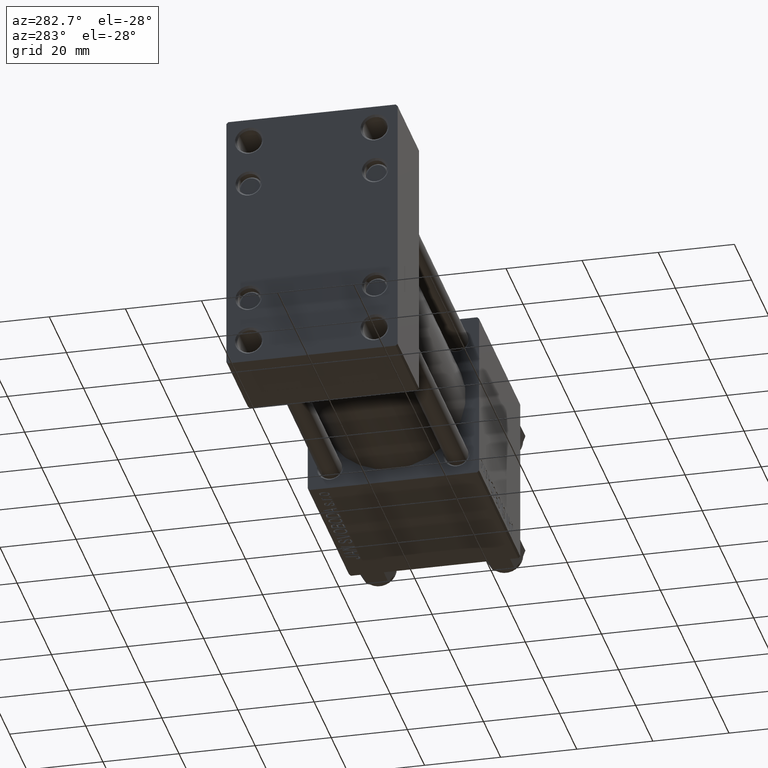
[diagram: clean part render]
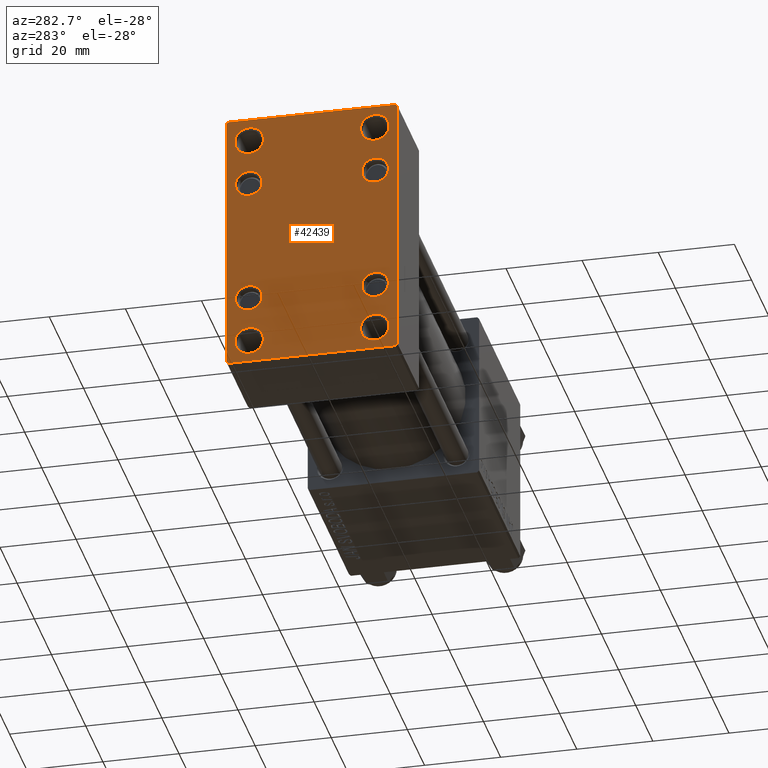
[diagram: same view with one face highlighted and labeled with its STEP entity id]
A machine part, auxiliary view. The second image highlights one B-rep face of the part: STEP entity #42439.
In plain terms, the highlighted planar face has unit normal (-1, 0, 0).
Its self-contained STEP definition (entity closure, byte-faithful):
#41 = FACE_BOUND ( 'NONE', #39488, .T. ) ;
#63 = EDGE_LOOP ( 'NONE', ( #40024, #11030 ) ) ;
#440 = DIRECTION ( 'NONE',  ( 0.000000000000000000, 0.000000000000000000, 1.000000000000000000 ) ) ;
#557 = DIRECTION ( 'NONE',  ( -1.000000000000000000, 0.000000000000000000, -0.000000000000000000 ) ) ;
#716 = EDGE_CURVE ( 'NONE', #3910, #43613, #39759, .T. ) ;
#1208 = CARTESIAN_POINT ( 'NONE',  ( 0.000000000000000000, 16.49999999999999289, 28.99999999999998934 ) ) ;
#1262 = AXIS2_PLACEMENT_3D ( 'NONE', #18228, #44245, #24819 ) ;
#1288 = DIRECTION ( 'NONE',  ( 1.000000000000000000, -0.000000000000000000, 0.000000000000000000 ) ) ;
#1602 = ORIENTED_EDGE ( 'NONE', *, *, #45843, .T. ) ;
#1672 = CIRCLE ( 'NONE', #14585, 3.749999999999989342 ) ;
#1865 = CARTESIAN_POINT ( 'NONE',  ( 0.000000000000000000, -22.49999999999999645, 34.50000000000000000 ) ) ;
#2139 = CARTESIAN_POINT ( 'NONE',  ( 0.000000000000000000, 16.59999999999999787, -16.60000000000000497 ) ) ;
#2729 = CARTESIAN_POINT ( 'NONE',  ( 0.000000000000000000, -16.50000000000000711, -29.00000000000000711 ) ) ;
#2845 = DIRECTION ( 'NONE',  ( 1.000000000000000000, -0.000000000000000000, 0.000000000000000000 ) ) ;
#2869 = DIRECTION ( 'NONE',  ( 1.000000000000000000, -0.000000000000000000, 0.000000000000000000 ) ) ;
#3097 = CARTESIAN_POINT ( 'NONE',  ( 0.000000000000000000, -22.49999999999999645, 35.00000000000000000 ) ) ;
#3169 = VECTOR ( 'NONE', #32934, 1000.000000000000000 ) ;
#3270 = VECTOR ( 'NONE', #38008, 1000.000000000000000 ) ;
#3910 = VERTEX_POINT ( 'NONE', #46116 ) ;
#4003 = EDGE_LOOP ( 'NONE', ( #43285, #1602 ) ) ;
#4087 = FACE_BOUND ( 'NONE', #21335, .T. ) ;
#4222 = EDGE_CURVE ( 'NONE', #32988, #16689, #42163, .T. ) ;
#4301 = CARTESIAN_POINT ( 'NONE',  ( 0.000000000000000000, 16.49999999999999289, -25.25000000000004974 ) ) ;
#4918 = EDGE_CURVE ( 'NONE', #36325, #39022, #12298, .T. ) ;
#4983 = VERTEX_POINT ( 'NONE', #33688 ) ;
#5050 = AXIS2_PLACEMENT_3D ( 'NONE', #23603, #42792, #31437 ) ;
#5193 = DIRECTION ( 'NONE',  ( 1.000000000000000000, -0.000000000000000000, 0.000000000000000000 ) ) ;
#5466 = DIRECTION ( 'NONE',  ( 0.000000000000000000, 0.000000000000000000, 1.000000000000000000 ) ) ;
#5486 = CIRCLE ( 'NONE', #24081, 3.499999999999996003 ) ;
#6049 = EDGE_CURVE ( 'NONE', #42243, #6087, #6079, .T. ) ;
#6079 = LINE ( 'NONE', #37157, #29832 ) ;
#6087 = VERTEX_POINT ( 'NONE', #49504 ) ;
#6450 = EDGE_CURVE ( 'NONE', #14186, #14072, #8073, .T. ) ;
#6632 = CARTESIAN_POINT ( 'NONE',  ( 0.000000000000000000, -16.59999999999999076, -16.60000000000000853 ) ) ;
#7578 = EDGE_CURVE ( 'NONE', #18046, #4983, #24933, .T. ) ;
#7642 = FACE_BOUND ( 'NONE', #26289, .T. ) ;
#7890 = CARTESIAN_POINT ( 'NONE',  ( 0.000000000000000000, -16.50000000000000711, -32.74999999999996447 ) ) ;
#7894 = FACE_BOUND ( 'NONE', #4003, .T. ) ;
#7950 = ORIENTED_EDGE ( 'NONE', *, *, #45961, .T. ) ;
#7989 = VECTOR ( 'NONE', #36551, 1000.000000000000000 ) ;
#8073 = CIRCLE ( 'NONE', #37108, 3.749999999999958256 ) ;
#8396 = DIRECTION ( 'NONE',  ( -0.000000000000000000, 0.000000000000000000, 1.000000000000000000 ) ) ;
#8521 = VECTOR ( 'NONE', #49400, 999.9999999999998863 ) ;
#8815 = CARTESIAN_POINT ( 'NONE',  ( -0.000000000000000000, -28.50000000000015632, 28.49999999999976197 ) ) ;
#9032 = AXIS2_PLACEMENT_3D ( 'NONE', #23320, #35197, #38978 ) ;
#9548 = CARTESIAN_POINT ( 'NONE',  ( 0.000000000000000000, -21.99999999999998934, -35.00000000000000000 ) ) ;
#9623 = CIRCLE ( 'NONE', #47513, 3.499999999999996003 ) ;
#9703 = DIRECTION ( 'NONE',  ( 0.000000000000000000, 0.000000000000000000, 1.000000000000000000 ) ) ;
#9899 = AXIS2_PLACEMENT_3D ( 'NONE', #6632, #26096, #44278 ) ;
#10239 = ORIENTED_EDGE ( 'NONE', *, *, #4918, .T. ) ;
#10279 = VERTEX_POINT ( 'NONE', #23266 ) ;
#10851 = EDGE_CURVE ( 'NONE', #27629, #18046, #40365, .T. ) ;
#10895 = AXIS2_PLACEMENT_3D ( 'NONE', #28978, #33015, #5466 ) ;
#11030 = ORIENTED_EDGE ( 'NONE', *, *, #43990, .T. ) ;
#11232 = DIRECTION ( 'NONE',  ( 1.000000000000000000, -0.000000000000000000, 0.000000000000000000 ) ) ;
#11935 = DIRECTION ( 'NONE',  ( 0.000000000000000000, 0.000000000000000000, 1.000000000000000000 ) ) ;
#12065 = DIRECTION ( 'NONE',  ( 1.000000000000000000, -0.000000000000000000, 0.000000000000000000 ) ) ;
#12266 = CIRCLE ( 'NONE', #43715, 3.499999999999996003 ) ;
#12298 = CIRCLE ( 'NONE', #9899, 3.499999999999996003 ) ;
#12458 = EDGE_CURVE ( 'NONE', #16689, #32988, #1672, .T. ) ;
#12622 = CIRCLE ( 'NONE', #30385, 3.749999999999958256 ) ;
#12767 = DIRECTION ( 'NONE',  ( 0.000000000000000000, 0.000000000000000000, 1.000000000000000000 ) ) ;
#13187 = VERTEX_POINT ( 'NONE', #18689 ) ;
#13297 = ORIENTED_EDGE ( 'NONE', *, *, #49460, .T. ) ;
#14048 = VERTEX_POINT ( 'NONE', #42493 ) ;
#14072 = VERTEX_POINT ( 'NONE', #7890 ) ;
#14183 = CIRCLE ( 'NONE', #35179, 3.749999999999958256 ) ;
#14186 = VERTEX_POINT ( 'NONE', #47775 ) ;
#14258 = CARTESIAN_POINT ( 'NONE',  ( 0.000000000000000000, 16.49999999999999289, -29.00000000000000711 ) ) ;
#14585 = AXIS2_PLACEMENT_3D ( 'NONE', #1208, #43403, #23981 ) ;
#14605 = EDGE_CURVE ( 'NONE', #43613, #3910, #18695, .T. ) ;
#14951 = DIRECTION ( 'NONE',  ( 0.000000000000000000, 0.000000000000000000, -1.000000000000000000 ) ) ;
#15583 = EDGE_CURVE ( 'NONE', #43125, #29808, #12266, .T. ) ;
#15623 = EDGE_CURVE ( 'NONE', #45184, #14048, #46959, .T. ) ;
#15782 = DIRECTION ( 'NONE',  ( 0.000000000000000000, 0.000000000000000000, 1.000000000000000000 ) ) ;
#16278 = EDGE_CURVE ( 'NONE', #13187, #27858, #42929, .T. ) ;
#16431 = AXIS2_PLACEMENT_3D ( 'NONE', #49718, #12065, #440 ) ;
#16689 = VERTEX_POINT ( 'NONE', #28372 ) ;
#16962 = CARTESIAN_POINT ( 'NONE',  ( 0.000000000000000000, 21.99999999999999645, -34.99999999999999289 ) ) ;
#17184 = CARTESIAN_POINT ( 'NONE',  ( 0.000000000000000000, 22.50000000000000355, 35.00000000000000711 ) ) ;
#17520 = LINE ( 'NONE', #37470, #3169 ) ;
#18046 = VERTEX_POINT ( 'NONE', #9548 ) ;
#18228 = CARTESIAN_POINT ( 'NONE',  ( 0.000000000000000000, -16.50000000000000711, 28.99999999999998934 ) ) ;
#18455 = DIRECTION ( 'NONE',  ( 0.000000000000000000, 0.7071067811865376918, -0.7071067811865574537 ) ) ;
#18522 = CARTESIAN_POINT ( 'NONE',  ( 0.000000000000000000, 22.00000000000000355, 35.00000000000000711 ) ) ;
#18689 = CARTESIAN_POINT ( 'NONE',  ( 0.000000000000000000, 16.59999999999999787, -20.10000000000000142 ) ) ;
#18695 = CIRCLE ( 'NONE', #46079, 3.499999999999996003 ) ;
#19502 = PLANE ( 'NONE',  #45614 ) ;
#19512 = CARTESIAN_POINT ( 'NONE',  ( 0.000000000000000000, 16.59999999999999787, 16.60000000000000497 ) ) ;
#19615 = EDGE_CURVE ( 'NONE', #41704, #40571, #49489, .T. ) ;
#19932 = CARTESIAN_POINT ( 'NONE',  ( 0.000000000000000000, 16.59999999999999787, -13.10000000000000675 ) ) ;
#20073 = ORIENTED_EDGE ( 'NONE', *, *, #24963, .T. ) ;
#20183 = LINE ( 'NONE', #8815, #39120 ) ;
#21335 = EDGE_LOOP ( 'NONE', ( #21955, #39175 ) ) ;
#21903 = LINE ( 'NONE', #25943, #8521 ) ;
#21955 = ORIENTED_EDGE ( 'NONE', *, *, #15583, .T. ) ;
#22482 = EDGE_LOOP ( 'NONE', ( #48438, #33515 ) ) ;
#22633 = CARTESIAN_POINT ( 'NONE',  ( 0.000000000000000000, -16.59999999999999076, 16.60000000000000853 ) ) ;
#22840 = DIRECTION ( 'NONE',  ( 1.000000000000000000, -0.000000000000000000, 0.000000000000000000 ) ) ;
#23266 = CARTESIAN_POINT ( 'NONE',  ( 0.000000000000000000, 22.50000000000000355, -34.49999999999999289 ) ) ;
#23288 = ORIENTED_EDGE ( 'NONE', *, *, #4222, .T. ) ;
#23309 = FACE_BOUND ( 'NONE', #44768, .T. ) ;
#23320 = CARTESIAN_POINT ( 'NONE',  ( 0.000000000000000000, 16.49999999999999289, -29.00000000000000711 ) ) ;
#23367 = CARTESIAN_POINT ( 'NONE',  ( 0.000000000000000000, -16.59999999999999076, -13.10000000000001030 ) ) ;
#23603 = CARTESIAN_POINT ( 'NONE',  ( 0.000000000000000000, 16.49999999999999289, 28.99999999999998934 ) ) ;
#23776 = CARTESIAN_POINT ( 'NONE',  ( 0.000000000000000000, -16.59999999999999076, -20.10000000000000497 ) ) ;
#23981 = DIRECTION ( 'NONE',  ( 0.000000000000000000, 0.000000000000000000, 1.000000000000000000 ) ) ;
#24003 = DIRECTION ( 'NONE',  ( -0.000000000000000000, 0.7071067811865426878, 0.7071067811865524577 ) ) ;
#24081 = AXIS2_PLACEMENT_3D ( 'NONE', #28593, #1288, #24803 ) ;
#24803 = DIRECTION ( 'NONE',  ( 0.000000000000000000, 0.000000000000000000, 1.000000000000000000 ) ) ;
#24819 = DIRECTION ( 'NONE',  ( 0.000000000000000000, 0.000000000000000000, 1.000000000000000000 ) ) ;
#24933 = LINE ( 'NONE', #40589, #7989 ) ;
#24963 = EDGE_CURVE ( 'NONE', #25721, #42740, #20183, .T. ) ;
#25357 = CARTESIAN_POINT ( 'NONE',  ( 0.000000000000000000, 16.59999999999999787, -16.60000000000000497 ) ) ;
#25379 = CARTESIAN_POINT ( 'NONE',  ( 0.000000000000000000, -16.50000000000000711, -29.00000000000000711 ) ) ;
#25721 = VERTEX_POINT ( 'NONE', #1865 ) ;
#25943 = CARTESIAN_POINT ( 'NONE',  ( 0.000000000000000000, 28.49999999999984013, -28.50000000000024158 ) ) ;
#26080 = ORIENTED_EDGE ( 'NONE', *, *, #33383, .F. ) ;
#26096 = DIRECTION ( 'NONE',  ( 1.000000000000000000, -0.000000000000000000, 0.000000000000000000 ) ) ;
#26289 = EDGE_LOOP ( 'NONE', ( #13297, #10239 ) ) ;
#26851 = FACE_BOUND ( 'NONE', #22482, .T. ) ;
#27124 = CARTESIAN_POINT ( 'NONE',  ( 0.000000000000000000, 16.59999999999999787, 20.10000000000000142 ) ) ;
#27629 = VERTEX_POINT ( 'NONE', #16962 ) ;
#27858 = VERTEX_POINT ( 'NONE', #19932 ) ;
#28372 = CARTESIAN_POINT ( 'NONE',  ( 0.000000000000000000, 16.49999999999999289, 32.74999999999997868 ) ) ;
#28593 = CARTESIAN_POINT ( 'NONE',  ( 0.000000000000000000, -16.59999999999999076, -16.60000000000000853 ) ) ;
#28735 = CIRCLE ( 'NONE', #1262, 3.750000000000003553 ) ;
#28978 = CARTESIAN_POINT ( 'NONE',  ( 0.000000000000000000, 16.59999999999999787, 16.60000000000000497 ) ) ;
#29420 = EDGE_LOOP ( 'NONE', ( #36871, #41888 ) ) ;
#29433 = DIRECTION ( 'NONE',  ( 1.000000000000000000, -0.000000000000000000, 0.000000000000000000 ) ) ;
#29457 = VECTOR ( 'NONE', #14951, 1000.000000000000000 ) ;
#29516 = CARTESIAN_POINT ( 'NONE',  ( 0.000000000000000000, 16.49999999999999289, 25.25000000000000000 ) ) ;
#29808 = VERTEX_POINT ( 'NONE', #46095 ) ;
#29832 = VECTOR ( 'NONE', #18455, 999.9999999999998863 ) ;
#30385 = AXIS2_PLACEMENT_3D ( 'NONE', #14258, #22840, #42026 ) ;
#31184 = CIRCLE ( 'NONE', #10895, 3.499999999999996003 ) ;
#31437 = DIRECTION ( 'NONE',  ( 0.000000000000000000, 0.000000000000000000, 1.000000000000000000 ) ) ;
#31741 = CARTESIAN_POINT ( 'NONE',  ( 0.000000000000000000, -16.59999999999999076, 16.60000000000000853 ) ) ;
#31923 = ORIENTED_EDGE ( 'NONE', *, *, #6049, .T. ) ;
#32934 = DIRECTION ( 'NONE',  ( 0.000000000000000000, -1.000000000000000000, -1.541976423090495387E-16 ) ) ;
#32988 = VERTEX_POINT ( 'NONE', #29516 ) ;
#33015 = DIRECTION ( 'NONE',  ( 1.000000000000000000, -0.000000000000000000, 0.000000000000000000 ) ) ;
#33383 = EDGE_CURVE ( 'NONE', #42243, #42740, #17520, .T. ) ;
#33387 = EDGE_CURVE ( 'NONE', #27858, #13187, #9623, .T. ) ;
#33515 = ORIENTED_EDGE ( 'NONE', *, *, #19615, .T. ) ;
#33688 = CARTESIAN_POINT ( 'NONE',  ( 0.000000000000000000, -22.49999999999999645, -34.50000000000000000 ) ) ;
#34813 = ORIENTED_EDGE ( 'NONE', *, *, #14605, .T. ) ;
#34927 = CARTESIAN_POINT ( 'NONE',  ( 0.000000000000000000, 0.000000000000000000, 0.000000000000000000 ) ) ;
#35179 = AXIS2_PLACEMENT_3D ( 'NONE', #25379, #2869, #9703 ) ;
#35197 = DIRECTION ( 'NONE',  ( 1.000000000000000000, -0.000000000000000000, 0.000000000000000000 ) ) ;
#35809 = ORIENTED_EDGE ( 'NONE', *, *, #716, .T. ) ;
#36325 = VERTEX_POINT ( 'NONE', #23776 ) ;
#36396 = LINE ( 'NONE', #17184, #44074 ) ;
#36551 = DIRECTION ( 'NONE',  ( 0.000000000000000000, -0.7071067811865426878, 0.7071067811865524577 ) ) ;
#36871 = ORIENTED_EDGE ( 'NONE', *, *, #33387, .T. ) ;
#37100 = DIRECTION ( 'NONE',  ( 0.000000000000000000, 0.000000000000000000, 1.000000000000000000 ) ) ;
#37108 = AXIS2_PLACEMENT_3D ( 'NONE', #2729, #40394, #37100 ) ;
#37157 = CARTESIAN_POINT ( 'NONE',  ( 0.000000000000000000, 28.50000000000030909, 28.49999999999952038 ) ) ;
#37470 = CARTESIAN_POINT ( 'NONE',  ( 0.000000000000000000, 22.50000000000000355, 35.00000000000000711 ) ) ;
#37534 = ORIENTED_EDGE ( 'NONE', *, *, #7578, .T. ) ;
#38008 = DIRECTION ( 'NONE',  ( 0.000000000000000000, -1.000000000000000000, -1.541976423090495387E-16 ) ) ;
#38284 = EDGE_CURVE ( 'NONE', #25721, #4983, #38457, .T. ) ;
#38457 = LINE ( 'NONE', #3097, #29457 ) ;
#38715 = FACE_BOUND ( 'NONE', #29420, .T. ) ;
#38978 = DIRECTION ( 'NONE',  ( 0.000000000000000000, 0.000000000000000000, 1.000000000000000000 ) ) ;
#39022 = VERTEX_POINT ( 'NONE', #23367 ) ;
#39120 = VECTOR ( 'NONE', #24003, 1000.000000000000000 ) ;
#39175 = ORIENTED_EDGE ( 'NONE', *, *, #41758, .T. ) ;
#39488 = EDGE_LOOP ( 'NONE', ( #39504, #23288 ) ) ;
#39504 = ORIENTED_EDGE ( 'NONE', *, *, #12458, .T. ) ;
#39759 = CIRCLE ( 'NONE', #48619, 3.499999999999996003 ) ;
#39927 = DIRECTION ( 'NONE',  ( 0.000000000000000000, 0.000000000000000000, -1.000000000000000000 ) ) ;
#40024 = ORIENTED_EDGE ( 'NONE', *, *, #6450, .T. ) ;
#40100 = CARTESIAN_POINT ( 'NONE',  ( 0.000000000000000000, -21.99999999999998934, 35.00000000000000000 ) ) ;
#40365 = LINE ( 'NONE', #48674, #3270 ) ;
#40394 = DIRECTION ( 'NONE',  ( 1.000000000000000000, -0.000000000000000000, 0.000000000000000000 ) ) ;
#40571 = VERTEX_POINT ( 'NONE', #48523 ) ;
#40589 = CARTESIAN_POINT ( 'NONE',  ( 0.000000000000000000, -28.50000000000015632, -28.49999999999976197 ) ) ;
#41704 = VERTEX_POINT ( 'NONE', #43853 ) ;
#41758 = EDGE_CURVE ( 'NONE', #29808, #43125, #31184, .T. ) ;
#41888 = ORIENTED_EDGE ( 'NONE', *, *, #16278, .T. ) ;
#42026 = DIRECTION ( 'NONE',  ( 0.000000000000000000, 0.000000000000000000, 1.000000000000000000 ) ) ;
#42163 = CIRCLE ( 'NONE', #5050, 3.749999999999989342 ) ;
#42243 = VERTEX_POINT ( 'NONE', #18522 ) ;
#42439 = ADVANCED_FACE ( 'NONE', ( #41, #26851, #42499, #7894, #23309, #7642, #38715, #4087, #42747 ), #19502, .T. ) ;
#42493 = CARTESIAN_POINT ( 'NONE',  ( 0.000000000000000000, 16.49999999999999289, -32.74999999999996447 ) ) ;
#42499 = FACE_BOUND ( 'NONE', #63, .T. ) ;
#42740 = VERTEX_POINT ( 'NONE', #40100 ) ;
#42747 = FACE_OUTER_BOUND ( 'NONE', #43487, .T. ) ;
#42792 = DIRECTION ( 'NONE',  ( 1.000000000000000000, -0.000000000000000000, 0.000000000000000000 ) ) ;
#42828 = EDGE_CURVE ( 'NONE', #10279, #27629, #21903, .T. ) ;
#42929 = CIRCLE ( 'NONE', #49381, 3.499999999999996003 ) ;
#43125 = VERTEX_POINT ( 'NONE', #27124 ) ;
#43285 = ORIENTED_EDGE ( 'NONE', *, *, #15623, .T. ) ;
#43370 = CARTESIAN_POINT ( 'NONE',  ( 0.000000000000000000, -16.59999999999999076, 13.10000000000001030 ) ) ;
#43403 = DIRECTION ( 'NONE',  ( 1.000000000000000000, -0.000000000000000000, 0.000000000000000000 ) ) ;
#43487 = EDGE_LOOP ( 'NONE', ( #7950, #46907, #46985, #37534, #49915, #20073, #26080, #31923 ) ) ;
#43613 = VERTEX_POINT ( 'NONE', #43370 ) ;
#43715 = AXIS2_PLACEMENT_3D ( 'NONE', #19512, #46544, #11935 ) ;
#43853 = CARTESIAN_POINT ( 'NONE',  ( 0.000000000000000000, -16.50000000000000711, 25.24999999999998934 ) ) ;
#43990 = EDGE_CURVE ( 'NONE', #14072, #14186, #14183, .T. ) ;
#44074 = VECTOR ( 'NONE', #39927, 1000.000000000000000 ) ;
#44216 = EDGE_CURVE ( 'NONE', #40571, #41704, #28735, .T. ) ;
#44245 = DIRECTION ( 'NONE',  ( 1.000000000000000000, -0.000000000000000000, 0.000000000000000000 ) ) ;
#44278 = DIRECTION ( 'NONE',  ( 0.000000000000000000, 0.000000000000000000, 1.000000000000000000 ) ) ;
#44768 = EDGE_LOOP ( 'NONE', ( #35809, #34813 ) ) ;
#44776 = DIRECTION ( 'NONE',  ( 0.000000000000000000, 0.000000000000000000, 1.000000000000000000 ) ) ;
#45184 = VERTEX_POINT ( 'NONE', #4301 ) ;
#45614 = AXIS2_PLACEMENT_3D ( 'NONE', #34927, #557, #8396 ) ;
#45843 = EDGE_CURVE ( 'NONE', #14048, #45184, #12622, .T. ) ;
#45961 = EDGE_CURVE ( 'NONE', #6087, #10279, #36396, .T. ) ;
#46079 = AXIS2_PLACEMENT_3D ( 'NONE', #22633, #11232, #15782 ) ;
#46095 = CARTESIAN_POINT ( 'NONE',  ( 0.000000000000000000, 16.59999999999999787, 13.10000000000000675 ) ) ;
#46116 = CARTESIAN_POINT ( 'NONE',  ( 0.000000000000000000, -16.59999999999999076, 20.10000000000000853 ) ) ;
#46544 = DIRECTION ( 'NONE',  ( 1.000000000000000000, -0.000000000000000000, 0.000000000000000000 ) ) ;
#46907 = ORIENTED_EDGE ( 'NONE', *, *, #42828, .T. ) ;
#46959 = CIRCLE ( 'NONE', #9032, 3.749999999999958256 ) ;
#46985 = ORIENTED_EDGE ( 'NONE', *, *, #10851, .T. ) ;
#47513 = AXIS2_PLACEMENT_3D ( 'NONE', #25357, #2845, #44776 ) ;
#47775 = CARTESIAN_POINT ( 'NONE',  ( 0.000000000000000000, -16.50000000000000711, -25.25000000000004974 ) ) ;
#47856 = DIRECTION ( 'NONE',  ( 0.000000000000000000, 0.000000000000000000, 1.000000000000000000 ) ) ;
#48438 = ORIENTED_EDGE ( 'NONE', *, *, #44216, .T. ) ;
#48523 = CARTESIAN_POINT ( 'NONE',  ( 0.000000000000000000, -16.50000000000000711, 32.74999999999999289 ) ) ;
#48619 = AXIS2_PLACEMENT_3D ( 'NONE', #31741, #5193, #12767 ) ;
#48674 = CARTESIAN_POINT ( 'NONE',  ( 0.000000000000000000, 22.50000000000000355, -34.99999999999999289 ) ) ;
#49381 = AXIS2_PLACEMENT_3D ( 'NONE', #2139, #29433, #47856 ) ;
#49400 = DIRECTION ( 'NONE',  ( -0.000000000000000000, -0.7071067811865525687, -0.7071067811865425767 ) ) ;
#49460 = EDGE_CURVE ( 'NONE', #39022, #36325, #5486, .T. ) ;
#49489 = CIRCLE ( 'NONE', #16431, 3.750000000000003553 ) ;
#49504 = CARTESIAN_POINT ( 'NONE',  ( 0.000000000000000000, 22.50000000000000355, 34.49999999999999289 ) ) ;
#49718 = CARTESIAN_POINT ( 'NONE',  ( 0.000000000000000000, -16.50000000000000711, 28.99999999999998934 ) ) ;
#49915 = ORIENTED_EDGE ( 'NONE', *, *, #38284, .F. ) ;